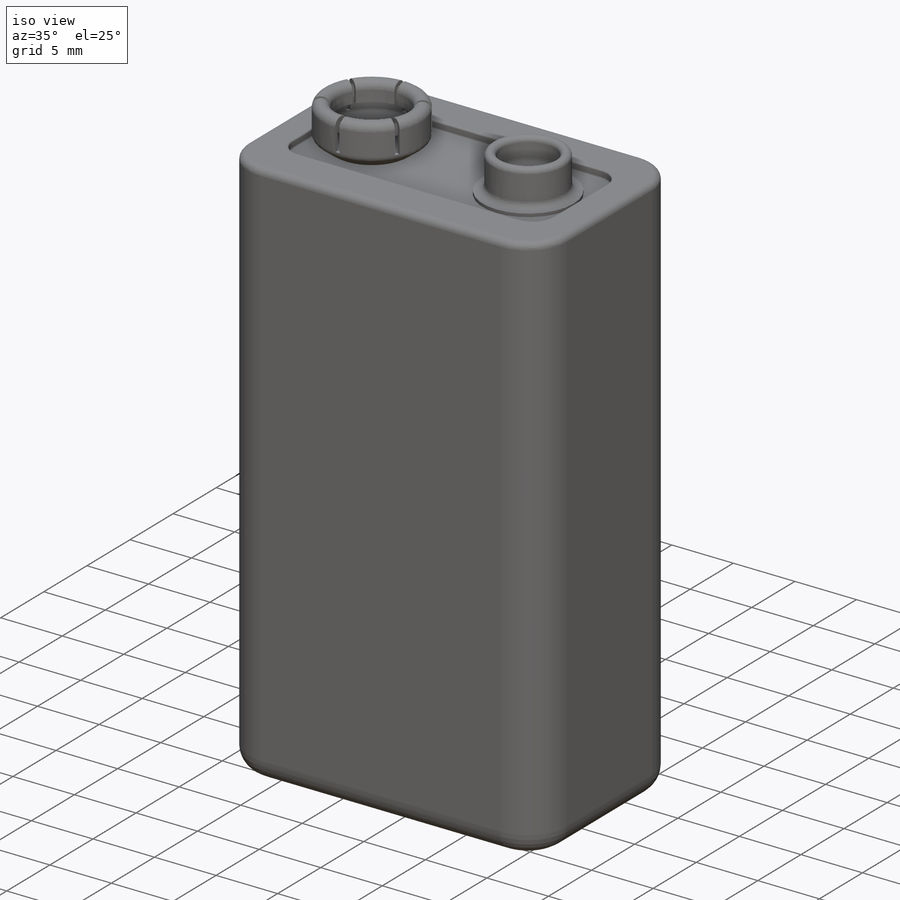
[diagram: iso view]
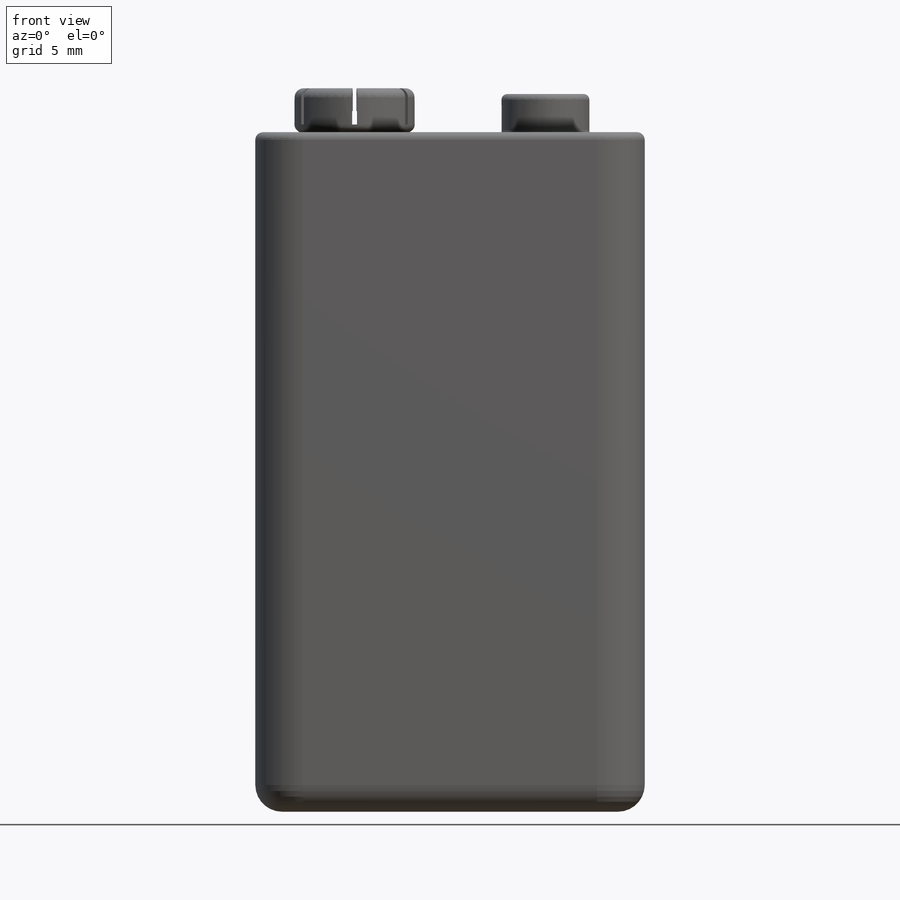
[diagram: front view]
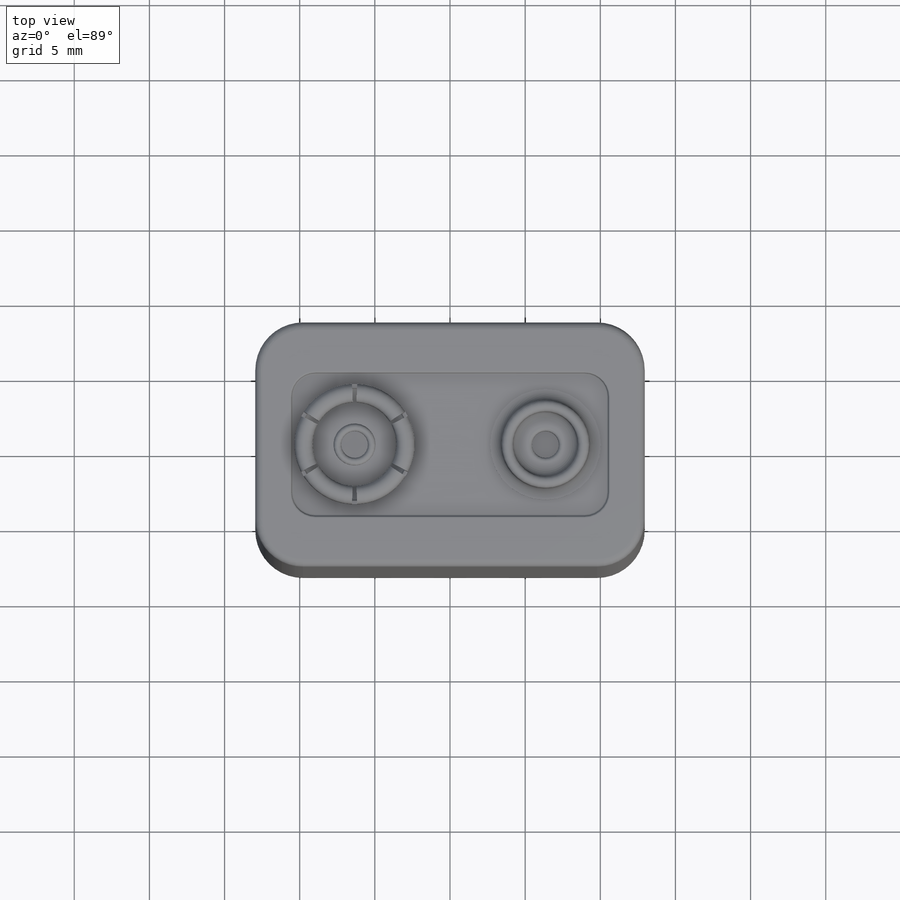
[diagram: top view]
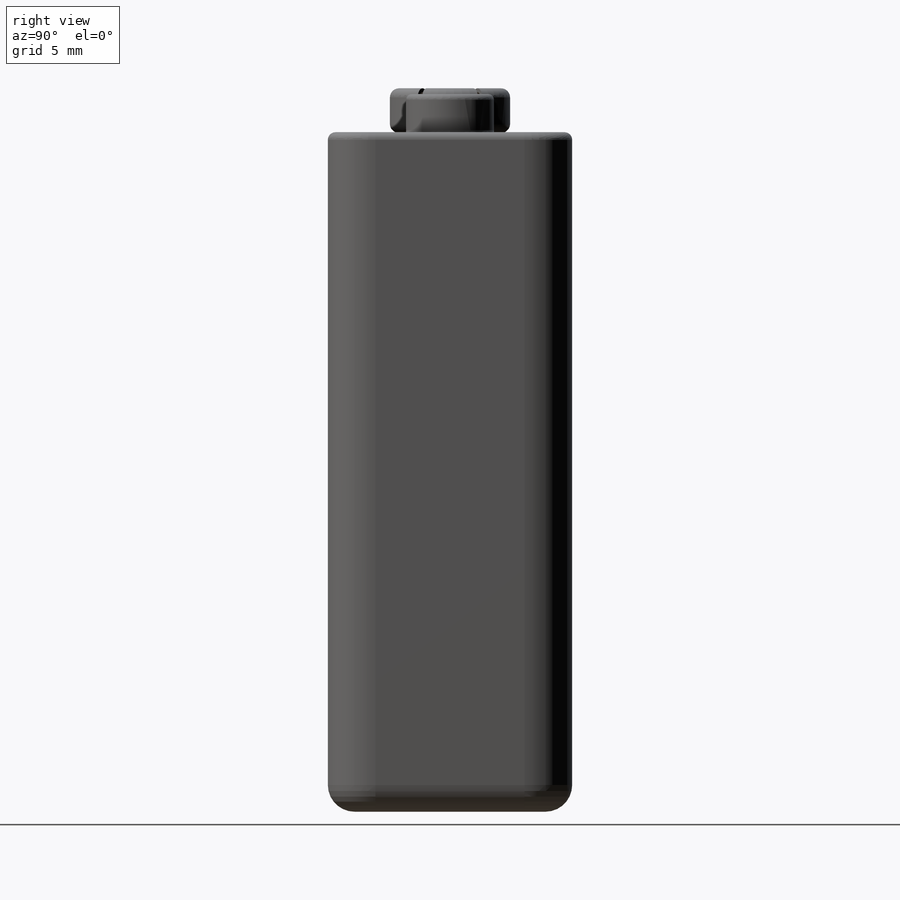
[diagram: right view]
SOLIDWORKS PART (.sldprt)
format: sldprt  version: not decoded by parser v0  size: 478,720 bytes
history: native  units: mm
features: sketch x7, fillet x4, revolve x3, material x1, extrude x1, cut_extrude x1, pattern_circular x1 (+13 scaffold rows collapsed)
feature tree (31):
  scaffold x13  (default folders/planes/origin — collapsed)
  material  "Material <not specified>"
  sketch  "Sketch1"  dims[D1=16.256mm D2=25.908mm]
  extrude  "Extrude1"  Depth=45.212mm
  fillet  "Fillet1"  Radius=3.175mm
  fillet  "Fillet2"  Radius=1.778mm
  sketch  "Sketch3"  dims[D3=1.5875mm D1=21.082mm D2=9.525mm]
  cut_extrude  "Extrude2"  Depth=0.635mm
  sketch  "Sketch4"  dims[D1=12.7mm]
  fillet  "Fillet3"  Radius=0.508mm
  fillet  "Fillet4"  Radius=0.127mm
  sketch  "Sketch5"  dims[c1.D1=0.508mm c1.D4=0.508mm c1.D7=~0.60325mm c1.D2=2.794mm c1.D3=4.0005mm c1.D6=2.667mm c2.D7=3.556mm c2.D8=1.524mm c2.D9=2.413mm c2.D6=2.667mm c2.D10=0.889mm c2.D11=0.508mm c2.D12=0.508mm c2.D5=0.254mm]
  sketch  "Sketch7"  dims[D1=0.0mm]
  revolve  "Revolve2"  Angle=360deg
  sketch  "Sketch6"  dims[D1=0.0mm]
  revolve  "Revolve3"  Angle=55deg
  pattern_circular  "CirPattern1"  Count=6 Angle=360deg
  sketch  "Sketch8"  dims[D3=0.508mm D4=0.508mm D7=0.254mm D1=0.762mm D2=0.254mm D5=3.683mm D6=2.921mm D8=2.032mm D9=3.175mm D10=0.889mm]
  revolve  "Revolve4"  Angle=360deg
decode coverage: 17 of 17 modeling features carry decoded parameters
note: ~ marks probable driven/reference dimensions
note: suppression state not decoded; provenance and decode notes live in map.json
